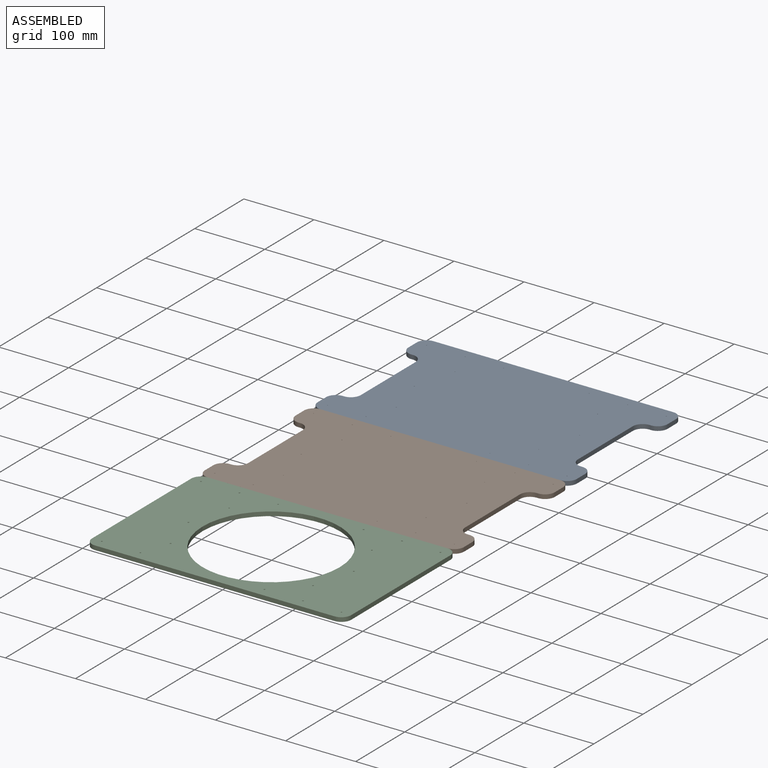
[diagram: assembled view]
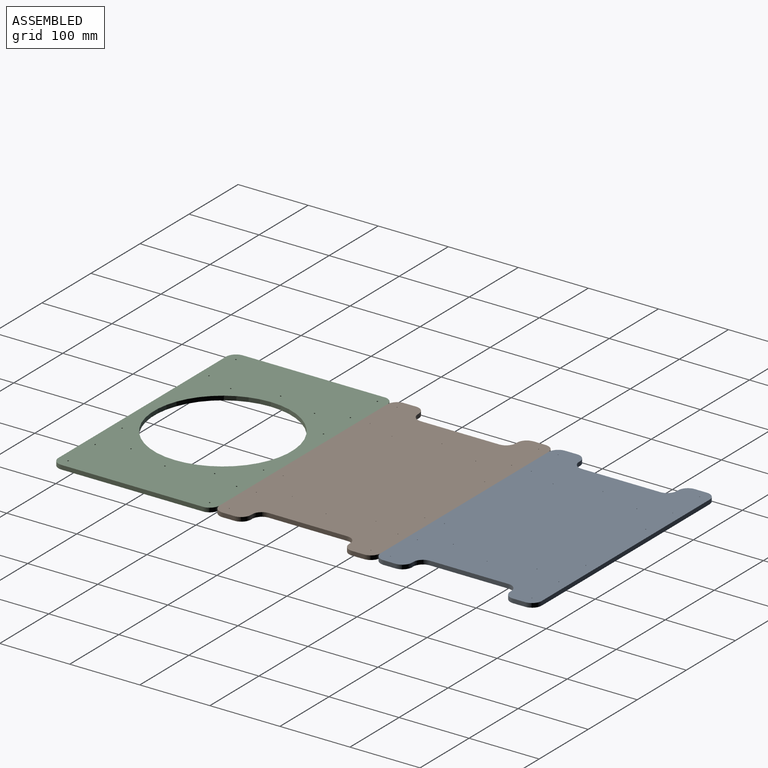
[diagram: assembled view, second angle]
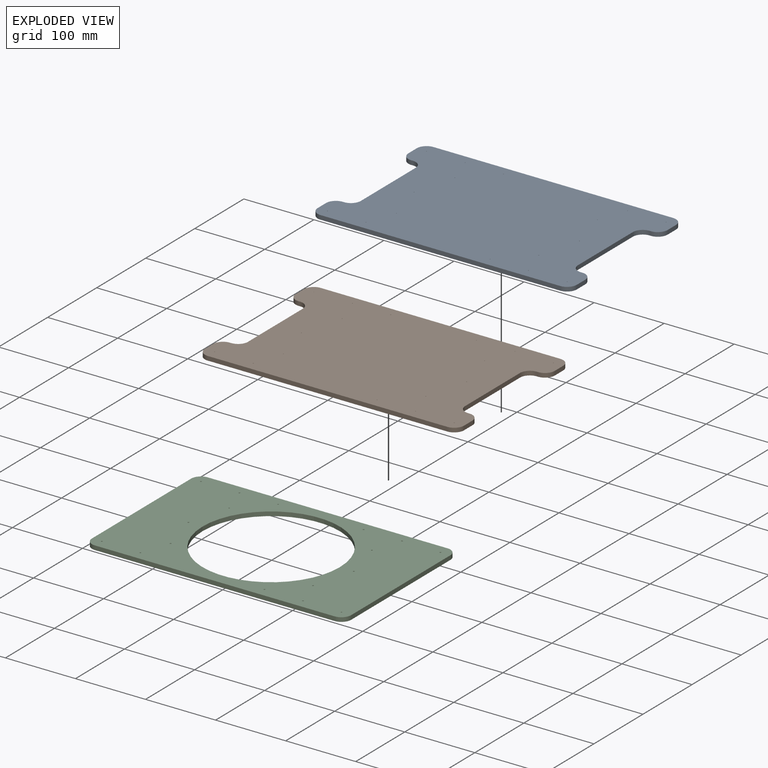
[diagram: exploded view]
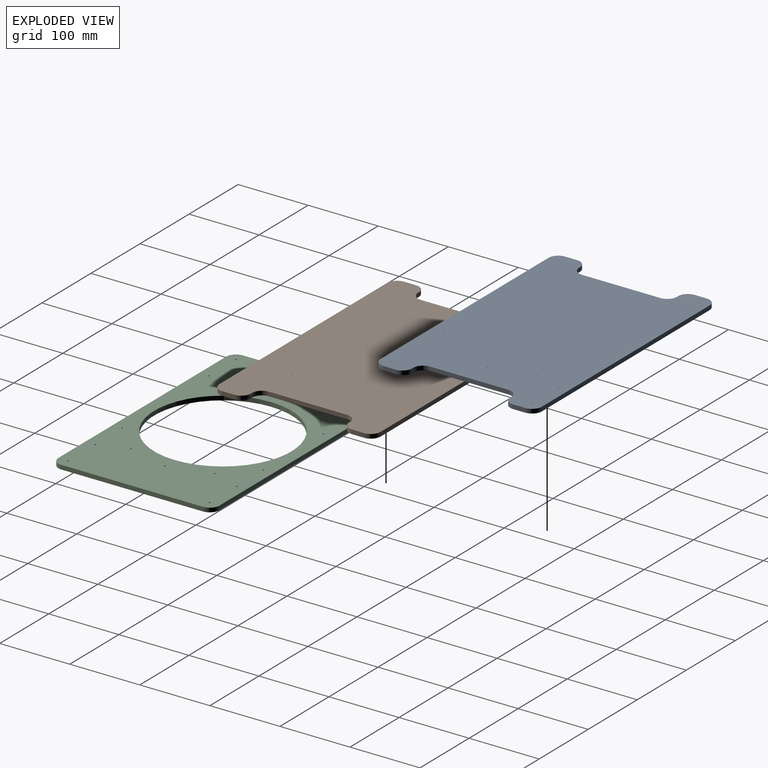
[diagram: exploded view, second angle]
ASSEMBLY  parts=3 mates=2
PART A: 43 faces, bbox 370x230x6 mm
  f0: plane 17x6mm, normal (-1,0,0), area 102mm2, adj f12,f13,f14,f25
  f1: plane 6x2mm, normal (0,-1,0), area 12mm2, adj f12,f13,f14,f15
  f2: plane 112x6mm, normal (-1,0,0), area 672mm2, adj f12,f13,f15,f16
  f3: plane 6x2mm, normal (0,1,0), area 12mm2, adj f12,f13,f16,f17
  f4: plane 17x6mm, normal (-1,0,0), area 102mm2, adj f12,f13,f17,f18
  f5: plane 342x6mm, normal (0,-1,0), area 2052mm2, adj f12,f13,f18,f19
  f6: plane 17x6mm, normal (1,0,0), area 102mm2, adj f12,f13,f19,f20
  f7: plane 6x2mm, normal (0,1,0), area 12mm2, adj f12,f13,f20,f21
  f8: plane 112x6mm, normal (1,0,0), area 672mm2, adj f12,f13,f21,f22
  f9: plane 6x2mm, normal (0,-1,0), area 12mm2, adj f12,f13,f22,f23
  f10: plane 17x6mm, normal (1,0,0), area 102mm2, adj f12,f13,f23,f24
  f11: plane 342x6mm, normal (0,1,0), area 2052mm2, adj f12,f13,f24,f25
  f12: plane 370x230mm, normal (0,0,-1), area 76518.4mm2, adj f0,f1,f2,f3,f4,f5,f6,f7
  f13: plane 370x230mm, normal (0,0,1), area 76518.4mm2, adj f0,f1,f2,f3,f4,f5,f6,f7
  f14: cylinder r=14mm len=14mm, axis (0,0,1), area 131.9mm2, adj f0,f1,f12,f13
  f15: cylinder r=14mm len=14mm, axis (0,0,-1), area 131.9mm2, adj f1,f2,f12,f13
  f16: cylinder r=14mm len=14mm, axis (0,0,1), area 131.9mm2, adj f2,f3,f12,f13
  f17: cylinder r=14mm len=14mm, axis (0,0,-1), area 131.9mm2, adj f3,f4,f12,f13
  f18: cylinder r=14mm len=14mm, axis (0,0,-1), area 131.9mm2, adj f4,f5,f12,f13
  f19: cylinder r=14mm len=14mm, axis (0,0,1), area 131.9mm2, adj f5,f6,f12,f13
  f20: cylinder r=14mm len=14mm, axis (0,0,-1), area 131.9mm2, adj f6,f7,f12,f13
  f21: cylinder r=14mm len=14mm, axis (0,0,1), area 131.9mm2, adj f7,f8,f12,f13
  f22: cylinder r=14mm len=14mm, axis (0,0,-1), area 131.9mm2, adj f8,f9,f12,f13
  f23: cylinder r=14mm len=14mm, axis (0,0,1), area 131.9mm2, adj f9,f10,f12,f13
  f24: cylinder r=14mm len=14mm, axis (0,0,-1), area 131.9mm2, adj f10,f11,f12,f13
  f25: cylinder r=14mm len=14mm, axis (0,0,1), area 131.9mm2, adj f0,f11,f12,f13
  f26: cylinder r=0.5mm len=6mm, axis (0,0,1), area 18.8mm2, adj f12,f13
  f27: cylinder r=0.5mm len=6mm, axis (0,0,1), area 18.8mm2, adj f12,f13
  f28: cylinder r=0.5mm len=6mm, axis (0,0,1), area 18.8mm2, adj f12,f13
  f29: cylinder r=0.5mm len=6mm, axis (0,0,1), area 18.8mm2, adj f12,f13
  f30: cylinder r=0.5mm len=6mm, axis (0,0,1), area 18.8mm2, adj f12,f13
  f31: cylinder r=0.5mm len=6mm, axis (0,0,1), area 18.8mm2, adj f12,f13
  f32: cylinder r=0.5mm len=6mm, axis (0,0,1), area 18.8mm2, adj f12,f13
  f33: cylinder r=0.5mm len=6mm, axis (0,0,1), area 18.8mm2, adj f12,f13
  f34: cylinder r=0.5mm len=6mm, axis (0,0,1), area 18.8mm2, adj f12,f13
  f35: cylinder r=0.5mm len=6mm, axis (0,0,1), area 18.8mm2, adj f12,f13
  f36: cylinder r=0.5mm len=6mm, axis (0,0,1), area 18.8mm2, adj f12,f13
  f37: cylinder r=0.5mm len=6mm, axis (0,0,1), area 18.8mm2, adj f12,f13
  f38: cylinder r=0.5mm len=6mm, axis (0,0,1), area 18.8mm2, adj f12,f13
  f39: cylinder r=0.5mm len=6mm, axis (0,0,1), area 18.8mm2, adj f12,f13
  f40: cylinder r=0.5mm len=6mm, axis (0,0,1), area 18.8mm2, adj f12,f13
  f41: cylinder r=0.5mm len=6mm, axis (0,0,1), area 18.8mm2, adj f12,f13
  f42: cylinder r=0.5mm len=6mm, axis (0,0,1), area 18.8mm2, adj f12,f13
PART B: same geometry as A
PART C: 28 faces, bbox 370x230x6 mm
  f0: plane 202x6mm, normal (-1,0,0), area 1212mm2, adj f1,f7,f9,f10
  f1: cylinder r=14mm len=14mm, axis (0,0,-1), area 131.9mm2, adj f0,f2,f9,f10
  f2: plane 342x6mm, normal (0,-1,0), area 2052mm2, adj f1,f3,f9,f10
  f3: cylinder r=14mm len=14mm, axis (0,0,-1), area 131.9mm2, adj f2,f4,f9,f10
  f4: plane 202x6mm, normal (1,0,0), area 1212mm2, adj f3,f5,f9,f10
  f5: cylinder r=14mm len=14mm, axis (0,0,-1), area 131.9mm2, adj f4,f6,f9,f10
  f6: plane 342x6mm, normal (0,1,0), area 2052mm2, adj f5,f7,f9,f10
  f7: cylinder r=14mm len=14mm, axis (0,0,-1), area 131.9mm2, adj f0,f6,f9,f10
  f8: cylinder r=98mm len=196mm, axis (0,0,-1), area 3694.5mm2, adj f9,f10
  f9: plane 370x230mm, normal (0,0,1), area 54706.5mm2, adj f0,f1,f2,f3,f4,f5,f6,f7
  f10: plane 370x230mm, normal (0,0,-1), area 54706.5mm2, adj f0,f1,f2,f3,f4,f5,f6,f7
  f11: cylinder r=1mm len=6mm, axis (0,0,1), area 37.7mm2, adj f9,f10
  f12: cylinder r=1mm len=6mm, axis (0,0,1), area 37.7mm2, adj f9,f10
  f13: cylinder r=1mm len=6mm, axis (0,0,1), area 37.7mm2, adj f9,f10
  f14: cylinder r=1mm len=6mm, axis (0,0,1), area 37.7mm2, adj f9,f10
  f15: cylinder r=1mm len=6mm, axis (0,0,1), area 37.7mm2, adj f9,f10
  f16: cylinder r=1mm len=6mm, axis (0,0,1), area 37.7mm2, adj f9,f10
  f17: cylinder r=1mm len=6mm, axis (0,0,1), area 37.7mm2, adj f9,f10
  f18: cylinder r=1mm len=6mm, axis (0,0,1), area 37.7mm2, adj f9,f10
  f19: cylinder r=1mm len=6mm, axis (0,0,1), area 37.7mm2, adj f9,f10
  f20: cylinder r=1mm len=6mm, axis (0,0,1), area 37.7mm2, adj f9,f10
  f21: cylinder r=1mm len=6mm, axis (0,0,1), area 37.7mm2, adj f9,f10
  f22: cylinder r=1mm len=6mm, axis (0,0,1), area 37.7mm2, adj f9,f10
  f23: cylinder r=1mm len=6mm, axis (0,0,1), area 37.7mm2, adj f9,f10
  f24: cylinder r=1mm len=6mm, axis (0,0,1), area 37.7mm2, adj f9,f10
  f25: cylinder r=1mm len=6mm, axis (0,0,1), area 37.7mm2, adj f9,f10
  f26: cylinder r=1mm len=6mm, axis (0,0,1), area 37.7mm2, adj f9,f10
  f27: cylinder r=1mm len=6mm, axis (0,0,1), area 37.7mm2, adj f9,f10
PLACE A t=(-199.78,358.66,3)mm
PLACE B t=(-199.78,128.66,3)mm
PLACE C t=(-199.78,-101.34,-3)mm
MATE fastened B.f13 <-> C.f9  axis (0,0,1) through (-199.78,13.66,3)mm
MATE fastened B.f13 <-> A.f13  axis (0,0,1) through (-199.78,243.66,3)mm
